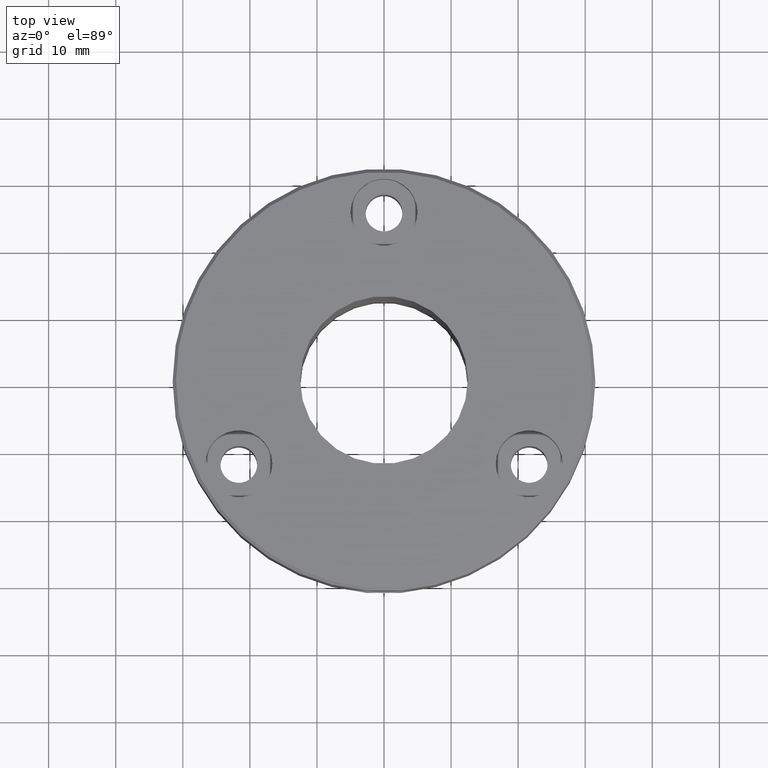
[diagram: clean part render]
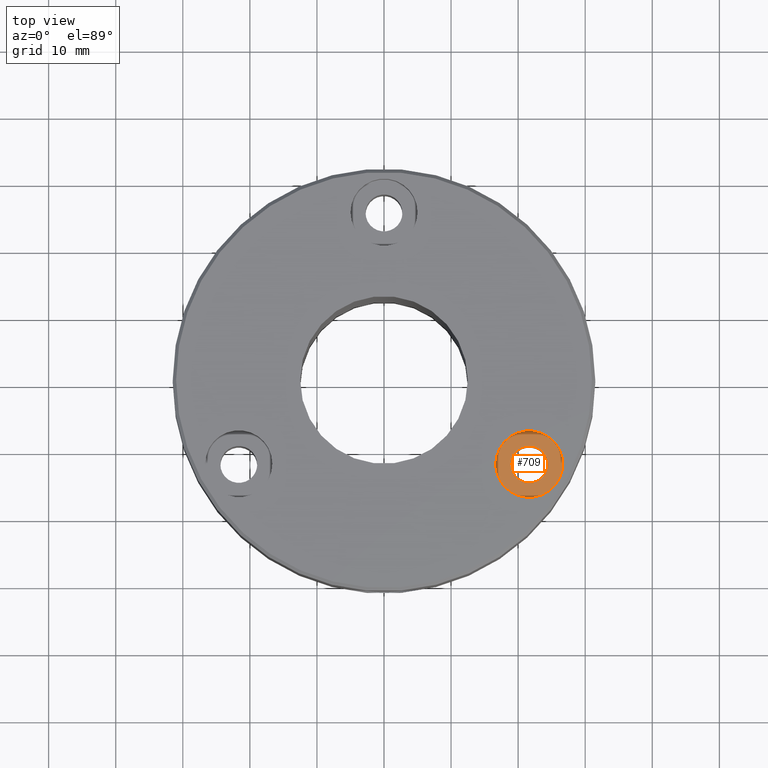
[diagram: same view with one face highlighted and labeled with its STEP entity id]
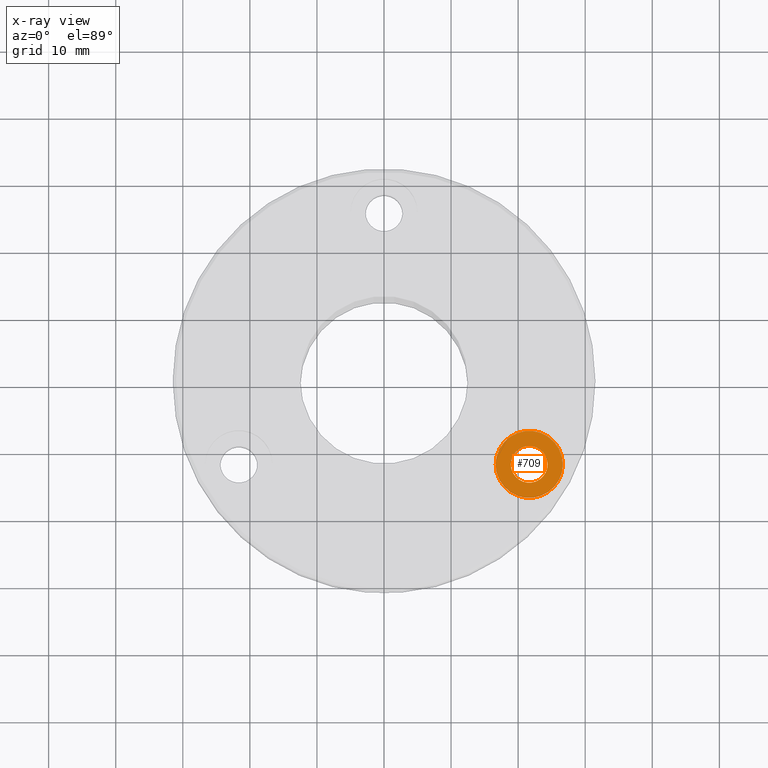
[diagram: x-ray of the same camera — body ghosted, the highlighted face saturated]
A machine part, top view. The second image highlights one B-rep face of the part: STEP entity #709.
The next image is the same camera in x-ray: the body ghosted, the highlighted face saturated — about 0% of this face is hidden behind the body in this view.
In plain terms, the highlighted planar face has unit normal (0, 0, -1).
Its self-contained STEP definition (entity closure, byte-faithful):
#22 = DIRECTION ( 'NONE',  ( 1.000000000000000000, 0.000000000000000000, 0.000000000000000000 ) ) ;
#38 = EDGE_CURVE ( 'NONE', #89, #171, #241, .T. ) ;
#42 = CARTESIAN_POINT ( 'NONE',  ( 24.40063509461092295, -12.50000000000010125, -5.400000000000000355 ) ) ;
#60 = VERTEX_POINT ( 'NONE', #349 ) ;
#89 = VERTEX_POINT ( 'NONE', #42 ) ;
#171 = VERTEX_POINT ( 'NONE', #1169 ) ;
#191 = CARTESIAN_POINT ( 'NONE',  ( 26.65063509461091584, -12.50000000000010125, -5.400000000000000355 ) ) ;
#211 = CARTESIAN_POINT ( 'NONE',  ( 21.65063509461091940, -12.50000000000010125, -5.400000000000000355 ) ) ;
#213 = EDGE_CURVE ( 'NONE', #60, #814, #1208, .T. ) ;
#234 = CARTESIAN_POINT ( 'NONE',  ( 21.65063509461091940, -12.50000000000010125, -5.400000000000000355 ) ) ;
#241 = CIRCLE ( 'NONE', #468, 2.750000000000005773 ) ;
#245 = ORIENTED_EDGE ( 'NONE', *, *, #731, .T. ) ;
#247 = DIRECTION ( 'NONE',  ( -1.000000000000000000, 0.000000000000000000, -0.000000000000000000 ) ) ;
#349 = CARTESIAN_POINT ( 'NONE',  ( 16.65063509461091940, -12.50000000000010125, -5.400000000000000355 ) ) ;
#407 = AXIS2_PLACEMENT_3D ( 'NONE', #799, #607, #612 ) ;
#419 = AXIS2_PLACEMENT_3D ( 'NONE', #234, #1128, #631 ) ;
#468 = AXIS2_PLACEMENT_3D ( 'NONE', #504, #777, #1083 ) ;
#504 = CARTESIAN_POINT ( 'NONE',  ( 21.65063509461091940, -12.50000000000010125, -5.400000000000000355 ) ) ;
#510 = AXIS2_PLACEMENT_3D ( 'NONE', #699, #625, #247 ) ;
#523 = EDGE_CURVE ( 'NONE', #171, #89, #903, .T. ) ;
#586 = DIRECTION ( 'NONE',  ( -0.000000000000000000, -0.000000000000000000, 1.000000000000000000 ) ) ;
#607 = DIRECTION ( 'NONE',  ( -0.000000000000000000, -0.000000000000000000, 1.000000000000000000 ) ) ;
#612 = DIRECTION ( 'NONE',  ( 1.000000000000000000, 0.000000000000000000, 0.000000000000000000 ) ) ;
#625 = DIRECTION ( 'NONE',  ( 0.000000000000000000, 0.000000000000000000, -1.000000000000000000 ) ) ;
#631 = DIRECTION ( 'NONE',  ( 1.000000000000000000, 0.000000000000000000, 0.000000000000000000 ) ) ;
#699 = CARTESIAN_POINT ( 'NONE',  ( 24.40063509461092295, -12.50000000000010125, -5.400000000000000355 ) ) ;
#709 = ADVANCED_FACE ( 'NONE', ( #1182, #792 ), #1188, .F. ) ;
#731 = EDGE_CURVE ( 'NONE', #814, #60, #945, .T. ) ;
#777 = DIRECTION ( 'NONE',  ( -0.000000000000000000, -0.000000000000000000, 1.000000000000000000 ) ) ;
#781 = AXIS2_PLACEMENT_3D ( 'NONE', #211, #586, #22 ) ;
#792 = FACE_OUTER_BOUND ( 'NONE', #1151, .T. ) ;
#799 = CARTESIAN_POINT ( 'NONE',  ( 21.65063509461091940, -12.50000000000010125, -5.400000000000000355 ) ) ;
#814 = VERTEX_POINT ( 'NONE', #191 ) ;
#903 = CIRCLE ( 'NONE', #419, 2.750000000000005773 ) ;
#913 = ORIENTED_EDGE ( 'NONE', *, *, #213, .T. ) ;
#945 = CIRCLE ( 'NONE', #407, 4.999999999999997335 ) ;
#1005 = ORIENTED_EDGE ( 'NONE', *, *, #523, .F. ) ;
#1083 = DIRECTION ( 'NONE',  ( 1.000000000000000000, 0.000000000000000000, 0.000000000000000000 ) ) ;
#1115 = ORIENTED_EDGE ( 'NONE', *, *, #38, .F. ) ;
#1128 = DIRECTION ( 'NONE',  ( -0.000000000000000000, -0.000000000000000000, 1.000000000000000000 ) ) ;
#1151 = EDGE_LOOP ( 'NONE', ( #245, #913 ) ) ;
#1169 = CARTESIAN_POINT ( 'NONE',  ( 18.90063509461091229, -12.50000000000010125, -5.400000000000000355 ) ) ;
#1182 = FACE_BOUND ( 'NONE', #1224, .T. ) ;
#1188 = PLANE ( 'NONE',  #510 ) ;
#1208 = CIRCLE ( 'NONE', #781, 4.999999999999997335 ) ;
#1224 = EDGE_LOOP ( 'NONE', ( #1115, #1005 ) ) ;